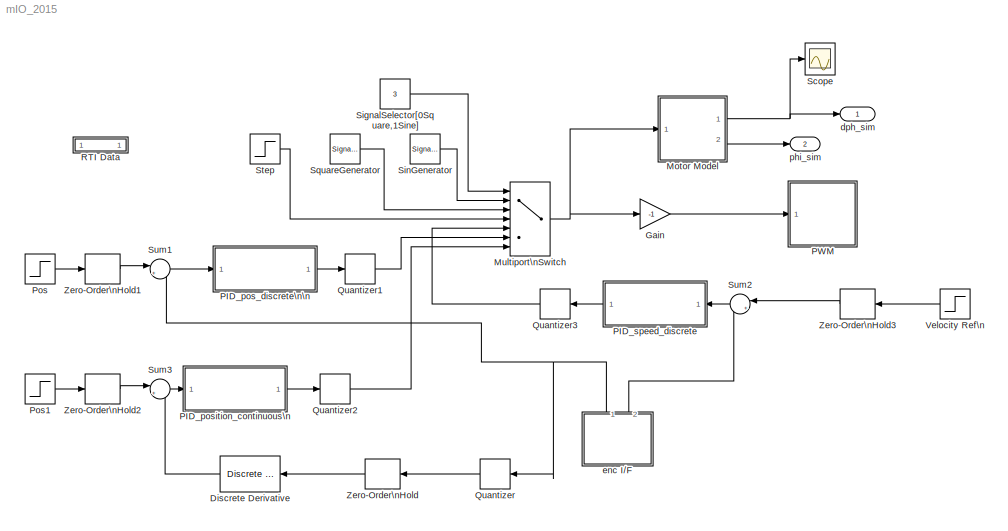
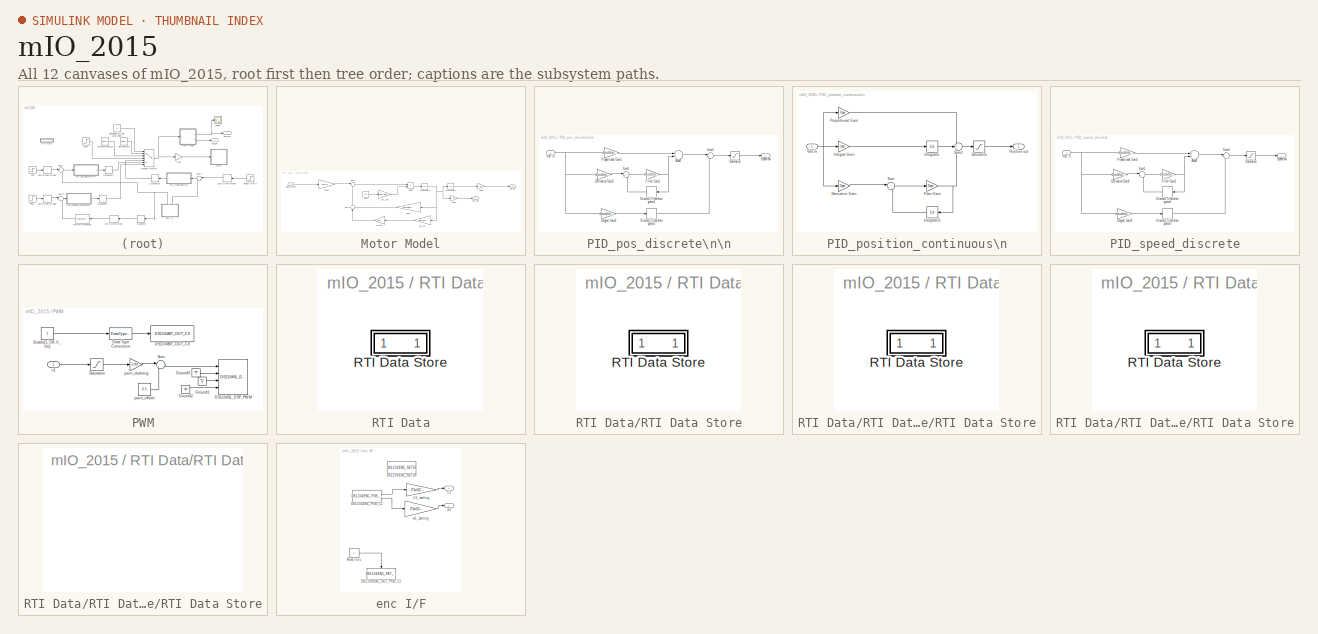
[diagram: thumbnail index - all 12 canvases of the model, root first then tree order]
MODEL mIO_2015
KIND model
CONFIG InitFcn = param
CONFIG PostLoadFcn = , if any(exist('dsrtsu_mdlpostloadfcn', 'file') == [2, 3, 6]), try dsrtsu_mdlpostloadfcn('Execute', bdroot); catch fprintf('Error in PostLoadFcn (dsrtsu_mdlpostloadfcn) for model \"%s\":\\n %s\\n', bdroot, lasterr); end, end, \n
BLOCK [Reference] Discrete Derivative  REF=simulink/Discrete/Discrete Derivative
  DoSatur = off
  ICPrevScaledInput = 0.0
  InputProcessing = Inherited
  LockScale = off
  OutDataType = fixdt(1, 16)
  OutDataTypeStr = Inherit: Inherit via internal rule
  OutMax = []
  OutMin = []
  OutScaling = 2^-10
  OutputDataTypeScalingMode = Inherit via internal rule
  Ports = [1, 1]
  RndMeth = Floor
  SID = 458
  SourceBlock = simulink/Discrete/Discrete Derivative
  SourceType = Discrete Derivative
  gainval = 1.0
BLOCK [Gain] Gain
  Gain = -1
  OutDataTypeStr = Inherit: Inherit via internal rule
  ParamDataTypeStr = Inherit: Inherit via internal rule
  SID = 141
  SaturateOnIntegerOverflow = off
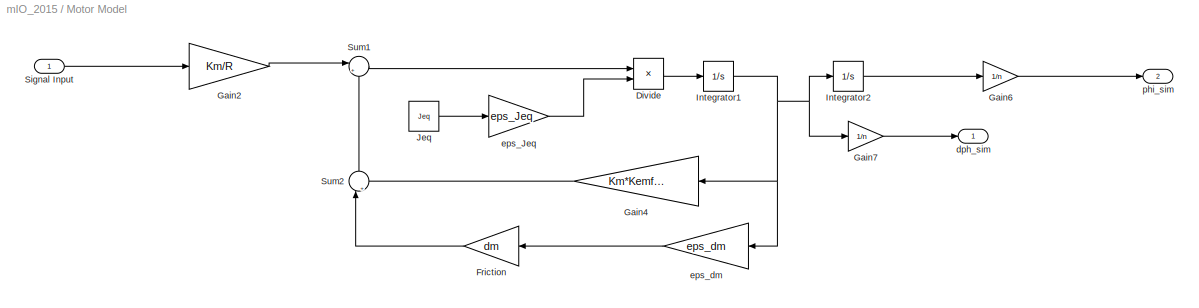
BLOCK [SubSystem] Motor Model
  Ports = [1, 2]
  RequestExecContextInheritance = off
  SID = 232
  Variant = off
BLOCK [Product] Motor Model/Divide
  InputSameDT = off
  Inputs = */
  OutDataTypeStr = Inherit: Inherit via internal rule
  Ports = [2, 1]
  RndMeth = Floor
  SID = 245
  SaturateOnIntegerOverflow = off
BLOCK [Gain] Motor Model/Friction
  Gain = dm
  OutDataTypeStr = Inherit: Inherit via internal rule
  ParamDataTypeStr = Inherit: Inherit via internal rule
  SID = 246
  SaturateOnIntegerOverflow = off
BLOCK [Gain] Motor Model/Gain2
  Gain = Km/R
  OutDataTypeStr = Inherit: Inherit via internal rule
  ParamDataTypeStr = Inherit: Inherit via internal rule
  SID = 247
  SaturateOnIntegerOverflow = off
BLOCK [Gain] Motor Model/Gain4
  Gain = Km*Kemf/(R)
  OutDataTypeStr = Inherit: Inherit via internal rule
  ParamDataTypeStr = Inherit: Inherit via internal rule
  SID = 248
  SaturateOnIntegerOverflow = off
BLOCK [Gain] Motor Model/Gain6
  Gain = 1/n
  OutDataTypeStr = Inherit: Inherit via internal rule
  ParamDataTypeStr = Inherit: Inherit via internal rule
  SID = 249
  SaturateOnIntegerOverflow = off
BLOCK [Gain] Motor Model/Gain7
  Gain = 1/n
  OutDataTypeStr = Inherit: Inherit via internal rule
  ParamDataTypeStr = Inherit: Inherit via internal rule
  SID = 250
  SaturateOnIntegerOverflow = off
BLOCK [Integrator] Motor Model/Integrator1
  Ports = [1, 1]
  SID = 251
BLOCK [Integrator] Motor Model/Integrator2
  Ports = [1, 1]
  SID = 252
BLOCK [Constant] Motor Model/Jeq
  SID = 253
  Value = Jeq
BLOCK [Inport] Motor Model/Signal Input
  IconDisplay = Port number
  SID = 261
BLOCK [Sum] Motor Model/Sum1
  IconShape = round
  InputSameDT = off
  Inputs = |+-
  OutDataTypeStr = Inherit: Inherit via internal rule
  Ports = [2, 1]
  SID = 255
  SaturateOnIntegerOverflow = off
BLOCK [Sum] Motor Model/Sum2
  IconShape = round
  InputSameDT = off
  Inputs = |++
  OutDataTypeStr = Inherit: Inherit via internal rule
  Ports = [2, 1]
  SID = 256
  SaturateOnIntegerOverflow = off
BLOCK [Outport] Motor Model/dph_sim
  IconDisplay = Port number
  SID = 259
BLOCK [Gain] Motor Model/eps_Jeq
  Gain = eps_Jeq
  OutDataTypeStr = Inherit: Inherit via internal rule
  ParamDataTypeStr = Inherit: Inherit via internal rule
  SID = 257
  SaturateOnIntegerOverflow = off
BLOCK [Gain] Motor Model/eps_dm
  Gain = eps_dm
  OutDataTypeStr = Inherit: Inherit via internal rule
  ParamDataTypeStr = Inherit: Inherit via internal rule
  SID = 258
  SaturateOnIntegerOverflow = off
BLOCK [Outport] Motor Model/phi_sim
  IconDisplay = Port number
  Port = 2
  SID = 260
BLOCK [MultiPortSwitch] Multiport\nSwitch
  InputSameDT = off
  Inputs = 6
  Ports = [7, 1]
  SID = 218
  SaturateOnIntegerOverflow = off
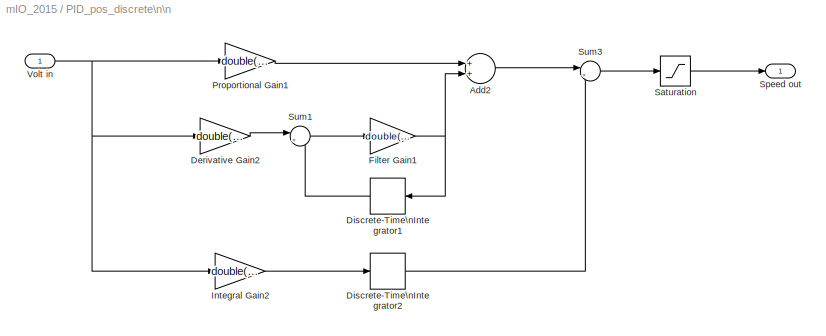
BLOCK [SubSystem] PID_pos_discrete\n\n
  Ports = [1, 1]
  RequestExecContextInheritance = off
  SID = 433
  Variant = off
BLOCK [Sum] PID_pos_discrete\n\n/Add2
  InputSameDT = off
  OutDataTypeStr = Inherit: Inherit via internal rule
  Ports = [2, 1]
  SID = 435
  SaturateOnIntegerOverflow = off
BLOCK [Gain] PID_pos_discrete\n\n/Derivative Gain2
  Gain = double(Dpos_d)
  OutDataTypeStr = Inherit: Inherit via internal rule
  ParamDataTypeStr = Inherit: Inherit via internal rule
  SID = 436
  SaturateOnIntegerOverflow = off
BLOCK [DiscreteIntegrator] PID_pos_discrete\n\n/Discrete-Time\nIntegrator1
  ICPrevOutput = DiscIntNeverNeededParam
  ICPrevScaledInput = DiscIntNeverNeededParam
  InitialConditionSetting = State (most efficient)
  Ports = [1, 1]
  SID = 437
BLOCK [DiscreteIntegrator] PID_pos_discrete\n\n/Discrete-Time\nIntegrator2
  ICPrevOutput = DiscIntNeverNeededParam
  ICPrevScaledInput = DiscIntNeverNeededParam
  InitialConditionSetting = State (most efficient)
  Ports = [1, 1]
  SID = 438
BLOCK [Gain] PID_pos_discrete\n\n/Filter Gain1
  Gain = double(Npos_d)
  OutDataTypeStr = Inherit: Inherit via internal rule
  ParamDataTypeStr = Inherit: Inherit via internal rule
  SID = 439
  SaturateOnIntegerOverflow = off
BLOCK [Gain] PID_pos_discrete\n\n/Integral Gain2
  Gain = double(Ipos_d)
  OutDataTypeStr = Inherit: Inherit via internal rule
  ParamDataTypeStr = Inherit: Inherit via internal rule
  SID = 440
  SaturateOnIntegerOverflow = off
BLOCK [Gain] PID_pos_discrete\n\n/Proportional Gain1
  Gain = double(Ppos_d)
  OutDataTypeStr = Inherit: Inherit via internal rule
  ParamDataTypeStr = Inherit: Inherit via internal rule
  SID = 441
  SaturateOnIntegerOverflow = off
BLOCK [Saturate] PID_pos_discrete\n\n/Saturation
  InputPortMap = u0
  LowerLimit = -24
  Ports = [1, 1]
  SID = 442
  UpperLimit = 24
BLOCK [Outport] PID_pos_discrete\n\n/Speed out
  IconDisplay = Port number
  SID = 445
BLOCK [Sum] PID_pos_discrete\n\n/Sum1
  IconShape = round
  InputSameDT = off
  Inputs = |+-
  OutDataTypeStr = Inherit: Inherit via internal rule
  Ports = [2, 1]
  SID = 443
  SaturateOnIntegerOverflow = off
BLOCK [Sum] PID_pos_discrete\n\n/Sum3
  IconShape = round
  InputSameDT = off
  Inputs = |++
  OutDataTypeStr = Inherit: Inherit via internal rule
  Ports = [2, 1]
  SID = 444
  SaturateOnIntegerOverflow = off
BLOCK [Inport] PID_pos_discrete\n\n/Volt in
  IconDisplay = Port number
  SID = 434
BLOCK [SubSystem] PID_position_continuous\n
  Ports = [1, 1]
  RequestExecContextInheritance = off
  SID = 446
  Variant = off
BLOCK [Gain] PID_position_continuous\n/Derivative Gain
  Gain = Dpos
  OutDataTypeStr = Inherit: Inherit via internal rule
  ParamDataTypeStr = Inherit: Inherit via internal rule
  SID = 448
  SaturateOnIntegerOverflow = off
BLOCK [Gain] PID_position_continuous\n/Filter Gain
  Gain = Npos
  OutDataTypeStr = Inherit: Inherit via internal rule
  ParamDataTypeStr = Inherit: Inherit via internal rule
  SID = 449
  SaturateOnIntegerOverflow = off
BLOCK [Gain] PID_position_continuous\n/Integral Gain
  Gain = Ipos
  OutDataTypeStr = Inherit: Inherit via internal rule
  ParamDataTypeStr = Inherit: Inherit via internal rule
  SID = 450
  SaturateOnIntegerOverflow = off
BLOCK [Integrator] PID_position_continuous\n/Integrator
  Ports = [1, 1]
  SID = 451
BLOCK [Integrator] PID_position_continuous\n/Integrator1
  Ports = [1, 1]
  SID = 452
BLOCK [Outport] PID_position_continuous\n/Position out
  IconDisplay = Port number
  SID = 456
BLOCK [Gain] PID_position_continuous\n/Proportional Gain
  Gain = Ppos
  OutDataTypeStr = Inherit: Inherit via internal rule
  ParamDataTypeStr = Inherit: Inherit via internal rule
  SID = 453
  SaturateOnIntegerOverflow = off
BLOCK [Saturate] PID_position_continuous\n/Saturation
  InputPortMap = u0
  LowerLimit = -24
  Ports = [1, 1]
  SID = 457
  UpperLimit = 24
BLOCK [Sum] PID_position_continuous\n/Sum
  IconShape = round
  InputSameDT = off
  Inputs = |+-
  OutDataTypeStr = Inherit: Inherit via internal rule
  Ports = [2, 1]
  SID = 454
  SaturateOnIntegerOverflow = off
BLOCK [Sum] PID_position_continuous\n/Sum1
  IconShape = round
  InputSameDT = off
  Inputs = +++
  OutDataTypeStr = Inherit: Inherit via internal rule
  Ports = [3, 1]
  SID = 455
  SaturateOnIntegerOverflow = off
BLOCK [Inport] PID_position_continuous\n/Volt in
  IconDisplay = Port number
  SID = 447
BLOCK [SubSystem] PID_speed_discrete
  Ports = [1, 1]
  RequestExecContextInheritance = off
  SID = 401
  Variant = off
BLOCK [Sum] PID_speed_discrete/Add2
  InputSameDT = off
  OutDataTypeStr = Inherit: Inherit via internal rule
  Ports = [2, 1]
  SID = 405
  SaturateOnIntegerOverflow = off
BLOCK [Gain] PID_speed_discrete/Derivative Gain2
  Gain = double(Dsp_d)
  OutDataTypeStr = Inherit: Inherit via internal rule
  ParamDataTypeStr = Inherit: Inherit via internal rule
  SID = 410
  SaturateOnIntegerOverflow = off
BLOCK [DiscreteIntegrator] PID_speed_discrete/Discrete-Time\nIntegrator1
  ICPrevOutput = DiscIntNeverNeededParam
  ICPrevScaledInput = DiscIntNeverNeededParam
  InitialConditionSetting = State (most efficient)
  Ports = [1, 1]
  SID = 412
BLOCK [DiscreteIntegrator] PID_speed_discrete/Discrete-Time\nIntegrator2
  ICPrevOutput = DiscIntNeverNeededParam
  ICPrevScaledInput = DiscIntNeverNeededParam
  InitialConditionSetting = State (most efficient)
  Ports = [1, 1]
  SID = 413
BLOCK [Gain] PID_speed_discrete/Filter Gain1
  Gain = double(Nsp_d)
  OutDataTypeStr = Inherit: Inherit via internal rule
  ParamDataTypeStr = Inherit: Inherit via internal rule
  SID = 415
  SaturateOnIntegerOverflow = off
BLOCK [Gain] PID_speed_discrete/Integral Gain2
  Gain = double(Isp_d)
  OutDataTypeStr = Inherit: Inherit via internal rule
  ParamDataTypeStr = Inherit: Inherit via internal rule
  SID = 417
  SaturateOnIntegerOverflow = off
BLOCK [Gain] PID_speed_discrete/Proportional Gain1
  Gain = double(Psp_d)
  OutDataTypeStr = Inherit: Inherit via internal rule
  ParamDataTypeStr = Inherit: Inherit via internal rule
  SID = 419
  SaturateOnIntegerOverflow = off
BLOCK [Saturate] PID_speed_discrete/Saturation
  InputPortMap = u0
  LowerLimit = -24
  Ports = [1, 1]
  SID = 420
  UpperLimit = 24
BLOCK [Outport] PID_speed_discrete/Speed out
  IconDisplay = Port number
  SID = 426
BLOCK [Sum] PID_speed_discrete/Sum1
  IconShape = round
  InputSameDT = off
  Inputs = |+-
  OutDataTypeStr = Inherit: Inherit via internal rule
  Ports = [2, 1]
  SID = 422
  SaturateOnIntegerOverflow = off
BLOCK [Sum] PID_speed_discrete/Sum3
  IconShape = round
  InputSameDT = off
  Inputs = |++
  OutDataTypeStr = Inherit: Inherit via internal rule
  Ports = [2, 1]
  SID = 424
  SaturateOnIntegerOverflow = off
BLOCK [Inport] PID_speed_discrete/Volt in
  IconDisplay = Port number
  SID = 402
BLOCK [SubSystem] PWM
  Ports = [1]
  RequestExecContextInheritance = off
  SID = 58
  Variant = off
BLOCK [Reference] PWM/DS1104BIT_OUT_C0  REF=rtilib1104/DS1104 MASTER PPC/DS1104BIT_OUT_C0
  ChannelNo = 0
  DSProperties = struct('RTI',struct('Version',uint32(1),'BlockType',struct('isSLSource',uint8(0),'isSLSink',uint8(1),'isHWSource',uint8(0),'isHWSink',uint8(1),'isSetup',uint8(0),'isInline',uint8(1),'isNonInline',uint8(0),'isInterrupt',uint8(0),'isChannelwise',uint8(1)),'IOBoardType','DS1104MASTER','UnitType','BIT','Identifier','BITOUTCH','DialogType','ML','BlockSet','NONE','SlaveProcessor','NONE'))
  DialogFcn = gui1104bit_out
  InitValue = 1
  Ports = [1]
  Reserved = []
  Reserved1 = []
  Reserved2 = []
  Reserved3 = []
  SID = 61
  SourceBlock = rtilib1104/DS1104 MASTER PPC/DS1104BIT_OUT_C0
  SourceType = RTI
  TermMode = 0
  TermValue = 0
  UnitName = {'DS1104BIT_OUT_C'}
  UnitValues = { 0 }
BLOCK [Reference] PWM/DS1104SL_DSP_PWM  REF=rtilib1104/DS1104 SLAVE DSP/DS1104SL_DSP_PWM
  BoardType = []
  DSProperties = struct('RTI',struct('Version',uint32(2),'BlockType',struct('isSLSource',uint8(0),'isSLSink',uint8(1),'isHWSource',uint8(0),'isHWSink',uint8(1),'isSetup',uint8(0),'isInline',uint8(1),'isNonInline',uint8(0),'isInterrupt',uint8(0),'isChannelwise',uint8(0)),'IOBoardType','DS1104SLAVE','UnitType','PWM','Identifier','PWM','DialogType','ML','BlockSet','NONE','SlaveProcessor','F240'))
  DialogFcn = gui1104sl_dsp_pwm
  Frequency = 20000
  InitValue = [0.5 0.5 0.5 0.5]
  Parameters = []
  Polarity = [1 1 1 1]
  Ports = [4]
  PwmMode = 1
  RTIBlockInterface = struct('InputPortsActive',[1 1 1 1],'InputPortsWidth',int32([1 1 1 1]),'InputPortsName',{{['PWM Channel 1'],['PWM Channel 2'],['PWM Channel 3'],['PWM Channel 4']}},'IWork',{{{'',uint32(4)}}},'DialogFcn','rti1104slavepwmgui','InitLevel',1,'BlockDisplay',{{'','auto'}},'IconTransparency','on','MultiSFcn',4,'BlockName',struct('Token',{{'DS1104SL_DSP_PWM'}}))
  RTIBlockParaDefault = struct('PWMSymmetryMode',1,'PWMFrequency',100,'PWMPolarityMode',[1 1 1 1 1],'ChannelNo',[1 2 3 4],'SuspendModeInit',[1 1 1 1 1],'TTLModeInit',[2 2 2 2 2],'DutyCycleInitValueCh1',0.5,'DutyCycleInitValueCh2',0.5,'DutyCycleInitValueCh3',0.5,'DutyCycleInitValueCh4',0.5,'DutyCycleInitValueCh5',0.5,'EnablePWMStop',[1 1 1 1 0],'SuspendModeTerm',[1 1 1 1 1],'TTLModeTerm',[2 2 2 2 2],'DutyCycleTermValueCh1...<+145ch>
  RTIBlockParameters = struct('PWMSymmetryMode',{{1,'OFF',[]}},'PWMFrequency',{{'50000','OFF',[]}},'PWMPolarityMode',{{[1 1 1 1 1],'OFF',[]}},'ChannelNo',{{[1 2 3 4],'OFF',[]}},'SuspendModeInit',{{[0 0 0 0 1],'OFF',[]}},'TTLModeInit',{{[2 2 2 2 2],'OFF',[]}},'DutyCycleInitValueCh1',{{'0.5','OFF',[]}},'DutyCycleInitValueCh2',{{'0.5','OFF',[]}},'DutyCycleInitValueCh3',{{'0.5','OFF',[]}},'DutyCycleInitValueCh4',{{'0.5','OF...<+429ch>
  RTISFcnParameters = struct('PWMSymmetryMode','double','PWMFrequency','double','PWMPolarityMode','double','ChannelNo','double','SuspendModeInit','double','TTLModeInit','double','DutyCycleInitValueCh1','double','DutyCycleInitValueCh2','double','DutyCycleInitValueCh3','double','DutyCycleInitValueCh4','double','EnablePWMStop','double','SuspendModeTerm','double','TTLModeTerm','double','DutyCycleTermValueCh1','double','Dut...<+116ch>
  Reserved1 = []
  Reserved2 = []
  Reserved3 = []
  Reserved4 = []
  Revision = []
  SID = 63
  SourceBlock = rtilib1104/DS1104 SLAVE DSP/DS1104SL_DSP_PWM
  SourceType = RTI
  TDef = []
  TermMode = [0 0 0 0]
  TermValue = [0.5 0.5 0.5 0.5]
  UnitName = {'DS1104SL_DSP_PWM'}
  UnitValues = {[]}
BLOCK [DataTypeConversion] PWM/Data Type Conversion
  OutDataTypeStr = boolean
  SID = 64
BLOCK [Constant] PWM/Enable[1_Off, 0_On]
  SID = 72
BLOCK [Ground] PWM/Ground1
  SID = 66
BLOCK [Ground] PWM/Ground2
  SID = 67
BLOCK [Ground] PWM/Ground3
  SID = 99
BLOCK [Saturate] PWM/Saturation
  InputPortMap = u0
  LowerLimit = -24
  Ports = [1, 1]
  SID = 100
  UpperLimit = 24
BLOCK [Sum] PWM/Sum
  IconShape = round
  InputSameDT = off
  Inputs = |++
  OutDataTypeStr = Inherit: Inherit via internal rule
  Ports = [2, 1]
  SID = 68
BLOCK [Constant] PWM/pwm_offstet
  SID = 70
  Value = 0.5
BLOCK [Gain] PWM/pwm_skalning
  Gain = 1/48
  SID = 74
BLOCK [Inport] PWM/u1
  IconDisplay = Port number
  SID = 59
BLOCK [Step] Pos
  SID = 381
  SampleTime = 0
  Time = 0
BLOCK [Step] Pos1
  SID = 397
  SampleTime = 0
  Time = 0
BLOCK [Quantizer] Quantizer
  QuantizationInterval = Pulses
  SID = 459
  SampleTime = Ts
BLOCK [Quantizer] Quantizer1
  LinearizeAsGain = off
  QuantizationInterval = Pulses
  SID = 399
  SampleTime = Ts
BLOCK [Quantizer] Quantizer2
  LinearizeAsGain = off
  QuantizationInterval = Pulses
  SID = 394
  SampleTime = Ts
BLOCK [Quantizer] Quantizer3
  LinearizeAsGain = off
  QuantizationInterval = Pulses
  SID = 311
  SampleTime = Ts
BLOCK [SubSystem] RTI Data
  CopyFcn = if exist('rtidc'), try,  rtidc('DataHostBlockClbCopy', gcbh); catch, disp(['Warning: ''CopyFcn'' for RTI Data block failed: ' lasterr]); end, end,
  DeleteFcn = if exist('rtidc'), try,  rtidc('DataHostBlockClbDelete', gcbh); catch, disp(['Warning: ''DeleteFcn'' for RTI Data block failed: ' lasterr]); end, end,
  LoadFcn = if exist('rtidc'), try,  rtidc('DataHostBlockClbLoad', gcbh); catch, disp(['Warning: ''LoadFcn'' for RTI Data block failed: ' lasterr]); end, end,
  ModelCloseFcn = if exist('rtidc'), try,  rtidc('DataHostBlockClbModelClose', gcbh); catch, disp(['Warning: ''ModelCloseFcn'' for RTI Data block failed: ' lasterr]); end, end,
  NameChangeFcn = if exist('rtidc'), try,  rtidc('DataHostBlockClbNameChange', gcbh); catch, disp(['Warning: ''NameChangeFcn'' for RTI Data block failed: ' lasterr]); end, end,
  Ports = []
  PostSaveFcn = if exist('rtidc'), try,  rtidc('DataHostBlockClbPostSave', gcbh); catch, disp(['Warning: ''PostSaveFcn'' for RTI Data block failed: ' lasterr]); end, end,
  PreSaveFcn = if exist('rtidc'), try,  rtidc('DataHostBlockClbPreSave', gcbh); catch, disp(['Warning: ''PreSaveFcn'' for RTI Data block failed: ' lasterr]); end, end,
  RequestExecContextInheritance = off
  SID = 40
  Tag = struct('RTIDataServer',struct('RTIDataServerVs','2','RTIModelDescription','struct(''main'',''mIO'',''sub'','''',''isMp'',0)'))
  Variant = off
BLOCK [SubSystem] RTI Data/RTI Data Store
  Ports = []
  RequestExecContextInheritance = off
  SID = 228
  Tag = struct('public',struct('sub',struct('name',{{'mIO'}},'data',{{struct('TH',struct('thTaskInfo',struct('taskType',{'TIMER','HWINT','TMRINT','SWINT','GLINT'},'tasksNumOf',{1,0,0,0,0},'srcIds',{{'TIMERA'},{},{},{},{}},'taskNames',{{['Timer Task 1']},{},{},{},{}})),'th_tc',struct('dataType','TASK','taskGroupId','','taskGroupList',{{}},'taskSchedulingPolicy','FCFS','taskType','TIMER','blkh',-1,'srcId','...<+729ch>
  Variant = off
BLOCK [SubSystem] RTI Data/RTI Data Store/RTI Data Store
  Ports = []
  RequestExecContextInheritance = off
  SID = 229
  Variant = off
BLOCK [SubSystem] RTI Data/RTI Data Store/RTI Data Store/RTI Data Store
  Ports = []
  RequestExecContextInheritance = off
  SID = 230
  Variant = off
BLOCK [SubSystem] RTI Data/RTI Data Store/RTI Data Store/RTI Data Store/RTI Data Store
  Ports = []
  RequestExecContextInheritance = off
  SID = 231
  Variant = off
BLOCK [Scope] Scope
  Ports = [1]
  SID = 223
  ScopeSpecificationString = Simulink.scopes.TimeScopeBlockCfg('CurrentConfiguration', extmgr.ConfigurationSet(extmgr.Configuration('Core','General UI',true),extmgr.Configuration('Core','Source UI',true),extmgr.Configuration('Sources','WiredSimulink',true,'DataLoggingLimitDataPoints',true,'DataLoggingSaveFormat','Array','DataLoggingDecimation','1','DataLoggingDecimateData',true),extmgr.Configuration('Visuals','Time Domain',tr...<+859ch>
BLOCK [Constant] SignalSelector[0Square,1Sine]
  SID = 116
  Value = 3
BLOCK [SignalGenerator] SinGenerator
  Amplitude = 0
  Ports = [0, 1]
  SID = 101
  Units = rad/sec
BLOCK [SignalGenerator] SquareGenerator
  Amplitude = 6
  Frequency = 2*pi*1e-4
  Ports = [0, 1]
  SID = 114
  Units = rad/sec
  WaveForm = square
BLOCK [Step] Step
  SID = 219
  SampleTime = 0
  Time = 0
BLOCK [Sum] Sum1
  IconShape = round
  InputSameDT = off
  Inputs = |+-
  OutDataTypeStr = Inherit: Inherit via internal rule
  Ports = [2, 1]
  SID = 380
  SaturateOnIntegerOverflow = off
BLOCK [Sum] Sum2
  IconShape = round
  InputSameDT = off
  Inputs = |+-
  OutDataTypeStr = Inherit: Inherit via internal rule
  Ports = [2, 1]
  SID = 352
  SaturateOnIntegerOverflow = off
BLOCK [Sum] Sum3
  IconShape = round
  InputSameDT = off
  Inputs = |+-
  OutDataTypeStr = Inherit: Inherit via internal rule
  Ports = [2, 1]
  SID = 398
  SaturateOnIntegerOverflow = off
BLOCK [Step] Velocity Ref\n
  SID = 351
  SampleTime = 0
  Time = 0
BLOCK [ZeroOrderHold] Zero-Order\nHold
  SID = 460
  SampleTime = Ts
BLOCK [ZeroOrderHold] Zero-Order\nHold1
  SID = 378
  SampleTime = Ts
BLOCK [ZeroOrderHold] Zero-Order\nHold2
  SID = 395
  SampleTime = Ts
BLOCK [ZeroOrderHold] Zero-Order\nHold3
  SID = 312
  SampleTime = Ts
BLOCK [Outport] dph_sim
  IconDisplay = Port number
  SID = 158
BLOCK [SubSystem] enc I//F
  Ports = [0, 2]
  RequestExecContextInheritance = off
  SID = 76
  Variant = off
BLOCK [Reference] enc I//F/DS1104ENC_POS_C1  REF=rtilib1104/DS1104 MASTER PPC/DS1104ENC_POS_C1
  ChannelNo = 1
  DSProperties = struct('RTI',struct('Version',uint32(1),'BlockType',struct('isSLSource',uint8(1),'isSLSink',uint8(0),'isHWSource',uint8(1),'isHWSink',uint8(0),'isSetup',uint8(0),'isInline',uint8(1),'isNonInline',uint8(0),'isInterrupt',uint8(0),'isChannelwise',uint8(1)),'IOBoardType','DS1104MASTER','UnitType','ENC','Identifier','ENCPOSCH','DialogType','ML','BlockSet','NONE','SlaveProcessor','NONE'))
  DialogFcn = gui1104enc_pos
  Ports = [0, 2]
  PosValue = 0
  Reserved1 = []
  Reserved2 = []
  Reserved3 = []
  Reserved4 = []
  SID = 77
  SourceBlock = rtilib1104/DS1104 MASTER PPC/DS1104ENC_POS_C1
  SourceType = RTI
  UnitName = {'DS1104ENC_POS_C'}
  UnitValues = { 1 }
BLOCK [Reference] enc I//F/DS1104ENC_SETUP  REF=rtilib1104/DS1104 MASTER PPC/DS1104ENC_SETUP
  DSProperties = struct('RTI',struct('Version',uint32(1),'BlockType',struct('isSLSource',uint8(0),'isSLSink',uint8(0),'isHWSource',uint8(0),'isHWSink',uint8(0),'isSetup',uint8(0),'isInline',uint8(1),'isNonInline',uint8(0),'isInterrupt',uint8(0),'isChannelwise',uint8(0)),'IOBoardType','DS1104MASTER','UnitType','ENC','Identifier','ENCSETUP','DialogType','ML','BlockSet','NONE','SlaveProcessor','NONE'))
  DialogFcn = gui1104enc_setup
  Ports = []
  Reserved1 = []
  Reserved2 = []
  Reserved3 = []
  Reserved4 = []
  SID = 79
  SignalType = [1 0]
  SourceBlock = rtilib1104/DS1104 MASTER PPC/DS1104ENC_SETUP
  SourceType = RTI
  UnitName = {'DS1104ENC_SETUP'}
  UnitValues = { [] }
BLOCK [Reference] enc I//F/DS1104ENC_SET_POS_C1  REF=rtilib1104/DS1104 MASTER PPC/DS1104ENC_SET_POS_C1
  ChannelNo = 1
  DSProperties = struct('RTI',struct('Version',uint32(1),'BlockType',struct('isSLSource',uint8(0),'isSLSink',uint8(1),'isHWSource',uint8(0),'isHWSink',uint8(1),'isSetup',uint8(0),'isInline',uint8(1),'isNonInline',uint8(0),'isInterrupt',uint8(0),'isChannelwise',uint8(1)),'IOBoardType','DS1104MASTER','UnitType','ENC','Identifier','ENCRESET','DialogType','ML','BlockSet','NONE','SlaveProcessor','NONE'))
  DialogFcn = gui1104enc_set_pos
  Ports = [0, 0, 0, 1]
  PosValue = 0
  Reserved1 = []
  Reserved2 = []
  Reserved3 = []
  Reserved4 = []
  SID = 80
  SourceBlock = rtilib1104/DS1104 MASTER PPC/DS1104ENC_SET_POS_C1
  SourceType = RTI
  UnitName = {'DS1104ENC_SET_POS_C'}
  UnitValues = { 1 }
BLOCK [Constant] enc I//F/Reset enc
  SID = 82
  Value = 0
BLOCK [Outport] enc I//F/fi1
  IconDisplay = Port number
  SID = 87
BLOCK [Gain] enc I//F/fi1_scaling
  Gain = 2*pi/(1000)
  SID = 83
BLOCK [Outport] enc I//F/w1
  IconDisplay = Port number
  Port = 2
  SID = 88
BLOCK [Gain] enc I//F/w1_scaling
  Gain = 2*pi/(1000)/Ts
  SID = 85
BLOCK [Outport] phi_sim
  IconDisplay = Port number
  Port = 2
  SID = 159
LINE Discrete Derivative:1 -> Sum3:2
LINE Gain:1 -> PWM:1
LINE Motor Model/Divide:1 -> Motor Model/Integrator1:1
LINE Motor Model/Friction:1 -> Motor Model/Sum2:1
LINE Motor Model/Gain2:1 -> Motor Model/Sum1:1
LINE Motor Model/Gain4:1 -> Motor Model/Sum2:2
LINE Motor Model/Gain6:1 -> Motor Model/phi_sim:1
LINE Motor Model/Gain7:1 -> Motor Model/dph_sim:1
NET Motor Model/Integrator1:1 -> Motor Model/Gain4:1, Motor Model/Gain7:1, Motor Model/Integrator2:1, Motor Model/eps_dm:1
LINE Motor Model/Integrator2:1 -> Motor Model/Gain6:1
LINE Motor Model/Jeq:1 -> Motor Model/eps_Jeq:1
LINE Motor Model/Signal Input:1 -> Motor Model/Gain2:1
LINE Motor Model/Sum1:1 -> Motor Model/Divide:1
LINE Motor Model/Sum2:1 -> Motor Model/Sum1:2
LINE Motor Model/eps_Jeq:1 -> Motor Model/Divide:2
LINE Motor Model/eps_dm:1 -> Motor Model/Friction:1
NET Motor Model:1 -> Scope:1, dph_sim:1
LINE Motor Model:2 -> phi_sim:1
NET Multiport\nSwitch:1 -> Gain:1, Motor Model:1
LINE PID_pos_discrete\n\n/Add2:1 -> PID_pos_discrete\n\n/Sum3:1
LINE PID_pos_discrete\n\n/Derivative Gain2:1 -> PID_pos_discrete\n\n/Sum1:1
LINE PID_pos_discrete\n\n/Discrete-Time\nIntegrator1:1 -> PID_pos_discrete\n\n/Sum1:2
LINE PID_pos_discrete\n\n/Discrete-Time\nIntegrator2:1 -> PID_pos_discrete\n\n/Sum3:2
NET PID_pos_discrete\n\n/Filter Gain1:1 -> PID_pos_discrete\n\n/Add2:2, PID_pos_discrete\n\n/Discrete-Time\nIntegrator1:1
LINE PID_pos_discrete\n\n/Integral Gain2:1 -> PID_pos_discrete\n\n/Discrete-Time\nIntegrator2:1
LINE PID_pos_discrete\n\n/Proportional Gain1:1 -> PID_pos_discrete\n\n/Add2:1
LINE PID_pos_discrete\n\n/Saturation:1 -> PID_pos_discrete\n\n/Speed out:1
LINE PID_pos_discrete\n\n/Sum1:1 -> PID_pos_discrete\n\n/Filter Gain1:1
LINE PID_pos_discrete\n\n/Sum3:1 -> PID_pos_discrete\n\n/Saturation:1
NET PID_pos_discrete\n\n/Volt in:1 -> PID_pos_discrete\n\n/Derivative Gain2:1, PID_pos_discrete\n\n/Integral Gain2:1, PID_pos_discrete\n\n/Proportional Gain1:1
LINE PID_pos_discrete\n\n:1 -> Quantizer1:1
LINE PID_position_continuous\n/Derivative Gain:1 -> PID_position_continuous\n/Sum:1
NET PID_position_continuous\n/Filter Gain:1 -> PID_position_continuous\n/Integrator1:1, PID_position_continuous\n/Sum1:3
LINE PID_position_continuous\n/Integral Gain:1 -> PID_position_continuous\n/Integrator:1
LINE PID_position_continuous\n/Integrator1:1 -> PID_position_continuous\n/Sum:2
LINE PID_position_continuous\n/Integrator:1 -> PID_position_continuous\n/Sum1:2
LINE PID_position_continuous\n/Proportional Gain:1 -> PID_position_continuous\n/Sum1:1
LINE PID_position_continuous\n/Saturation:1 -> PID_position_continuous\n/Position out:1
LINE PID_position_continuous\n/Sum1:1 -> PID_position_continuous\n/Saturation:1
LINE PID_position_continuous\n/Sum:1 -> PID_position_continuous\n/Filter Gain:1
NET PID_position_continuous\n/Volt in:1 -> PID_position_continuous\n/Derivative Gain:1, PID_position_continuous\n/Integral Gain:1, PID_position_continuous\n/Proportional Gain:1
LINE PID_position_continuous\n:1 -> Quantizer2:1
LINE PID_speed_discrete/Add2:1 -> PID_speed_discrete/Sum3:1
LINE PID_speed_discrete/Derivative Gain2:1 -> PID_speed_discrete/Sum1:1
LINE PID_speed_discrete/Discrete-Time\nIntegrator1:1 -> PID_speed_discrete/Sum1:2
LINE PID_speed_discrete/Discrete-Time\nIntegrator2:1 -> PID_speed_discrete/Sum3:2
NET PID_speed_discrete/Filter Gain1:1 -> PID_speed_discrete/Add2:2, PID_speed_discrete/Discrete-Time\nIntegrator1:1
LINE PID_speed_discrete/Integral Gain2:1 -> PID_speed_discrete/Discrete-Time\nIntegrator2:1
LINE PID_speed_discrete/Proportional Gain1:1 -> PID_speed_discrete/Add2:1
LINE PID_speed_discrete/Saturation:1 -> PID_speed_discrete/Speed out:1
LINE PID_speed_discrete/Sum1:1 -> PID_speed_discrete/Filter Gain1:1
LINE PID_speed_discrete/Sum3:1 -> PID_speed_discrete/Saturation:1
NET PID_speed_discrete/Volt in:1 -> PID_speed_discrete/Derivative Gain2:1, PID_speed_discrete/Integral Gain2:1, PID_speed_discrete/Proportional Gain1:1
LINE PID_speed_discrete:1 -> Quantizer3:1
LINE PWM/Data Type Conversion:1 -> PWM/DS1104BIT_OUT_C0:1
LINE PWM/Enable[1_Off, 0_On]:1 -> PWM/Data Type Conversion:1
LINE PWM/Ground1:1 -> PWM/DS1104SL_DSP_PWM:3
LINE PWM/Ground2:1 -> PWM/DS1104SL_DSP_PWM:4
LINE PWM/Ground3:1 -> PWM/DS1104SL_DSP_PWM:2
LINE PWM/Saturation:1 -> PWM/pwm_skalning:1
LINE PWM/Sum:1 -> PWM/DS1104SL_DSP_PWM:1
LINE PWM/pwm_offstet:1 -> PWM/Sum:2
LINE PWM/pwm_skalning:1 -> PWM/Sum:1
LINE PWM/u1:1 -> PWM/Saturation:1
LINE Pos1:1 -> Zero-Order\nHold2:1
LINE Pos:1 -> Zero-Order\nHold1:1
LINE Quantizer1:1 -> Multiport\nSwitch:6
LINE Quantizer2:1 -> Multiport\nSwitch:7
LINE Quantizer3:1 -> Multiport\nSwitch:5
LINE Quantizer:1 -> Zero-Order\nHold:1
LINE SignalSelector[0Square,1Sine]:1 -> Multiport\nSwitch:1
LINE SinGenerator:1 -> Multiport\nSwitch:2
LINE SquareGenerator:1 -> Multiport\nSwitch:3
LINE Step:1 -> Multiport\nSwitch:4
LINE Sum1:1 -> PID_pos_discrete\n\n:1
LINE Sum2:1 -> PID_speed_discrete:1
LINE Sum3:1 -> PID_position_continuous\n:1
LINE Velocity Ref\n:1 -> Zero-Order\nHold3:1
LINE Zero-Order\nHold1:1 -> Sum1:1
LINE Zero-Order\nHold2:1 -> Sum3:1
LINE Zero-Order\nHold3:1 -> Sum2:1
LINE Zero-Order\nHold:1 -> Discrete Derivative:1
LINE enc I//F/DS1104ENC_POS_C1:1 -> enc I//F/fi1_scaling:1
LINE enc I//F/DS1104ENC_POS_C1:2 -> enc I//F/w1_scaling:1
LINE enc I//F/Reset enc:1 -> enc I//F/DS1104ENC_SET_POS_C1:trigger
LINE enc I//F/fi1_scaling:1 -> enc I//F/fi1:1
LINE enc I//F/w1_scaling:1 -> enc I//F/w1:1
NET enc I//F:1 -> Quantizer:1, Sum1:2
LINE enc I//F:2 -> Sum2:2
note: NET lines group one-source signal fan-out (src -> all destinations, sorted); 1:1 wires keep LINE
